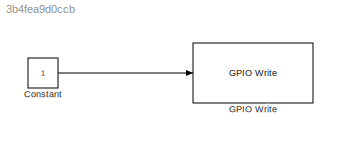
MODEL slx_3b4fea9d0ccb
KIND model
CONFIG AbsTol = auto
CONFIG EnableMultiTasking = on
CONFIG FixedStep = auto
CONFIG MaxStep = auto
CONFIG MinStep = auto
CONFIG RelTol = 1e-3
CONFIG SampleTimeConstraint = Unconstrained
CONFIG Solver = FixedStepAuto
CONFIG SolverName = FixedStepAuto
CONFIG StartTime = 0.0
CONFIG StopTime = inf
BLOCK [Constant] Constant
BLOCK [Reference] GPIO Write  REF=embdlinuxlib/GPIO Write
  Ports = [1]
  SourceBlock = embdlinuxlib/GPIO Write
  SourceProductBaseCode = SC_BEAGLEBONE_BLUE,RASPPI
  SourceType = GPIO Write
LINE Constant:1 -> GPIO Write:1
